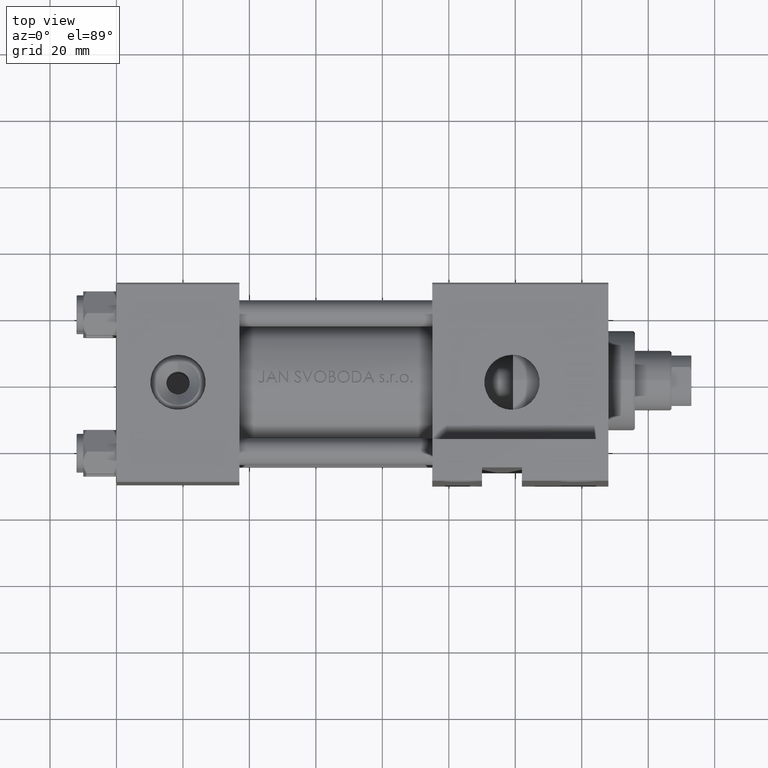
[diagram: clean part render]
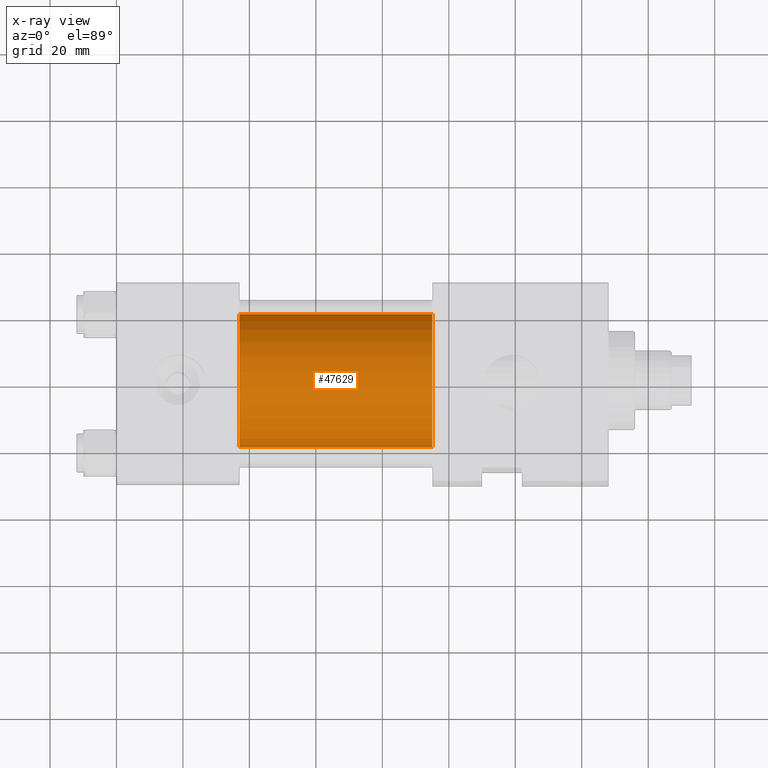
[diagram: x-ray — body ghosted, one internal face saturated and labeled with its STEP entity id]
A machine part, top view, then the same camera in x-ray: the body is ghosted and one INTERNAL B-rep face — a face not visible from any outside direction — is saturated and labeled: STEP entity #47629.
In plain terms, the highlighted cylindrical surface (partial cylindrical patch) has radius 20 mm, axis along (-1, -0, 0).
Its self-contained STEP definition (entity closure, byte-faithful):
#214 = VECTOR ( 'NONE', #47852, 1000.000000000000000 ) ;
#1098 = CARTESIAN_POINT ( 'NONE',  ( 95.00000000000000000, -1.224646799147354686E-16, 21.00000000000000000 ) ) ;
#1203 = AXIS2_PLACEMENT_3D ( 'NONE', #19394, #42848, #28805 ) ;
#1306 = VERTEX_POINT ( 'NONE', #26792 ) ;
#4379 = VERTEX_POINT ( 'NONE', #1098 ) ;
#5658 = CIRCLE ( 'NONE', #30091, 20.00000000000000000 ) ;
#6521 = EDGE_CURVE ( 'NONE', #4379, #34579, #19777, .T. ) ;
#6887 = EDGE_CURVE ( 'NONE', #4379, #1306, #5658, .T. ) ;
#7921 = FACE_OUTER_BOUND ( 'NONE', #9436, .T. ) ;
#9436 = EDGE_LOOP ( 'NONE', ( #34237, #43698, #27335, #45185 ) ) ;
#12186 = CARTESIAN_POINT ( 'NONE',  ( 37.00000000000000000, -1.224646799147354686E-16, 21.00000000000000000 ) ) ;
#13391 = DIRECTION ( 'NONE',  ( 1.000000000000000000, 0.000000000000000000, 0.000000000000000000 ) ) ;
#19394 = CARTESIAN_POINT ( 'NONE',  ( 95.00000000000000000, -1.224646799147354686E-16, 1.000000000000000888 ) ) ;
#19529 = DIRECTION ( 'NONE',  ( -1.000000000000000000, -0.000000000000000000, -0.000000000000000000 ) ) ;
#19777 = LINE ( 'NONE', #41795, #48744 ) ;
#22764 = VERTEX_POINT ( 'NONE', #38200 ) ;
#23211 = CYLINDRICAL_SURFACE ( 'NONE', #1203, 20.00000000000000000 ) ;
#26792 = CARTESIAN_POINT ( 'NONE',  ( 95.00000000000000000, 2.326828918379970576E-15, -19.00000000000000000 ) ) ;
#27335 = ORIENTED_EDGE ( 'NONE', *, *, #45808, .F. ) ;
#27950 = CARTESIAN_POINT ( 'NONE',  ( 37.00000000000000000, -1.224646799147354686E-16, 1.000000000000000888 ) ) ;
#28622 = DIRECTION ( 'NONE',  ( 0.000000000000000000, 0.000000000000000000, -1.000000000000000000 ) ) ;
#28805 = DIRECTION ( 'NONE',  ( 0.000000000000000000, 0.000000000000000000, 1.000000000000000000 ) ) ;
#30091 = AXIS2_PLACEMENT_3D ( 'NONE', #46978, #47986, #28622 ) ;
#31298 = AXIS2_PLACEMENT_3D ( 'NONE', #27950, #13391, #32778 ) ;
#32311 = CARTESIAN_POINT ( 'NONE',  ( 95.00000000000000000, 2.326828918379970576E-15, -19.00000000000000000 ) ) ;
#32778 = DIRECTION ( 'NONE',  ( 0.000000000000000000, 0.000000000000000000, -1.000000000000000000 ) ) ;
#34237 = ORIENTED_EDGE ( 'NONE', *, *, #6887, .T. ) ;
#34579 = VERTEX_POINT ( 'NONE', #12186 ) ;
#38200 = CARTESIAN_POINT ( 'NONE',  ( 37.00000000000000000, 2.326828918379970576E-15, -19.00000000000000000 ) ) ;
#39731 = EDGE_CURVE ( 'NONE', #1306, #22764, #44781, .T. ) ;
#41795 = CARTESIAN_POINT ( 'NONE',  ( 95.00000000000000000, -1.224646799147354686E-16, 21.00000000000000000 ) ) ;
#42848 = DIRECTION ( 'NONE',  ( -1.000000000000000000, -0.000000000000000000, -0.000000000000000000 ) ) ;
#43698 = ORIENTED_EDGE ( 'NONE', *, *, #39731, .T. ) ;
#44781 = LINE ( 'NONE', #32311, #214 ) ;
#45121 = CIRCLE ( 'NONE', #31298, 20.00000000000000000 ) ;
#45185 = ORIENTED_EDGE ( 'NONE', *, *, #6521, .F. ) ;
#45808 = EDGE_CURVE ( 'NONE', #34579, #22764, #45121, .T. ) ;
#46978 = CARTESIAN_POINT ( 'NONE',  ( 95.00000000000000000, -1.224646799147354686E-16, 1.000000000000000888 ) ) ;
#47629 = ADVANCED_FACE ( 'NONE', ( #7921 ), #23211, .F. ) ;
#47852 = DIRECTION ( 'NONE',  ( -1.000000000000000000, -0.000000000000000000, -0.000000000000000000 ) ) ;
#47986 = DIRECTION ( 'NONE',  ( 1.000000000000000000, 0.000000000000000000, 0.000000000000000000 ) ) ;
#48744 = VECTOR ( 'NONE', #19529, 1000.000000000000000 ) ;